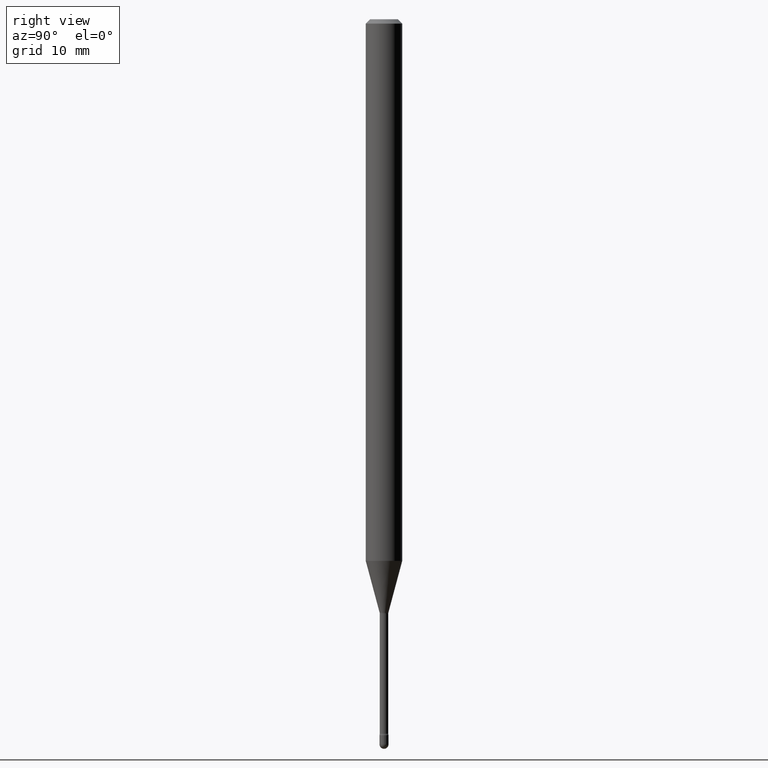
[diagram: clean part render]
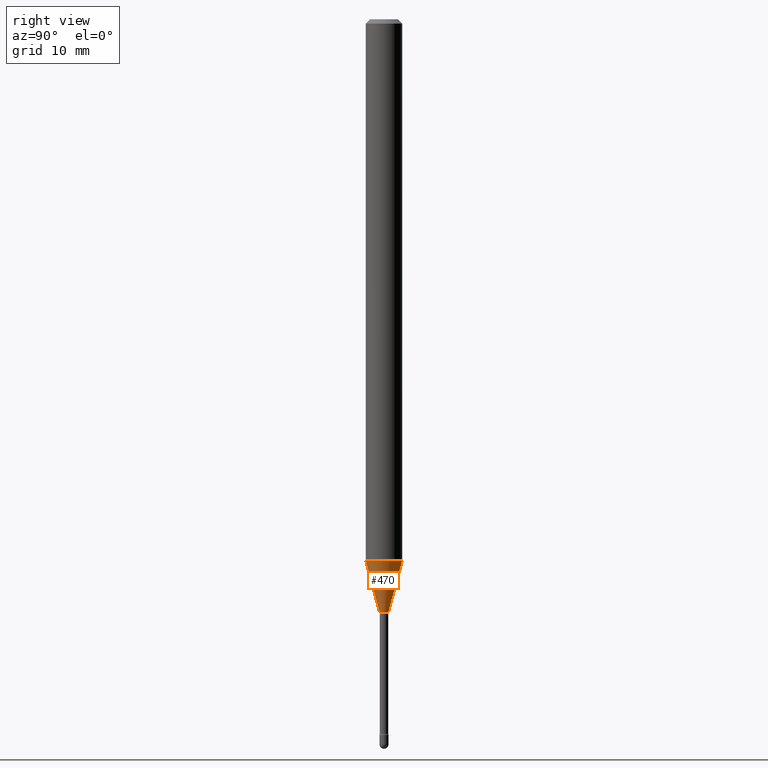
[diagram: same view with one face highlighted and labeled with its STEP entity id]
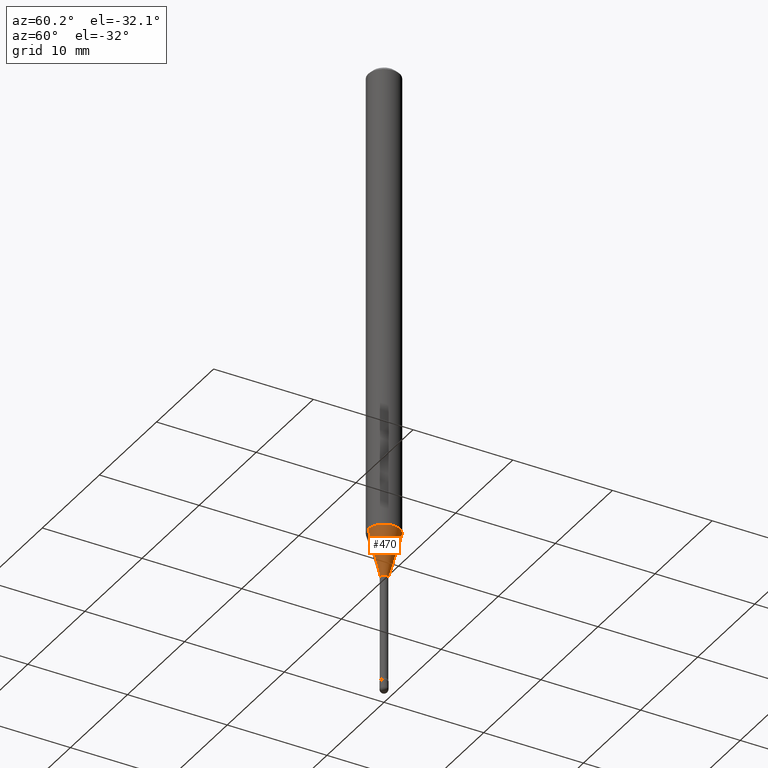
[diagram: same view with one face highlighted and labeled with its STEP entity id]
A machine part, right view. The second image highlights one B-rep face of the part: STEP entity #470.
A second angle (auxiliary view) of the same face is appended — the face is thin or edge-on in the first view.
In plain terms, the highlighted conical surface has half-angle 15 deg.
Its self-contained STEP definition (entity closure, byte-faithful):
#7 = CARTESIAN_POINT ( 'NONE',  ( -1.051711872097320102E-16, -0.01506111260567108076, -2.033092501787272965 ) ) ;
#15 = DIRECTION ( 'NONE',  ( -6.982962677686265922E-15, -1.000000000000000000, 4.370956789862821150E-15 ) ) ;
#22 = VECTOR ( 'NONE', #345, 39.37007874015748143 ) ;
#48 = AXIS2_PLACEMENT_3D ( 'NONE', #435, #189, #15 ) ;
#58 = CARTESIAN_POINT ( 'NONE',  ( 2.755524256971760080E-16, 0.01506111260565688378, -2.033092501787272965 ) ) ;
#72 = DIRECTION ( 'NONE',  ( -6.982962677686266711E-15, -1.000000000000000000, 0.000000000000000000 ) ) ;
#75 = VECTOR ( 'NONE', #516, 39.37007874015748854 ) ;
#83 = ORIENTED_EDGE ( 'NONE', *, *, #263, .T. ) ;
#95 = ORIENTED_EDGE ( 'NONE', *, *, #546, .F. ) ;
#145 = VERTEX_POINT ( 'NONE', #257 ) ;
#149 = CARTESIAN_POINT ( 'NONE',  ( 4.440892098501077785E-16, 0.06249999999999351213, -1.856048163777072935 ) ) ;
#152 = EDGE_CURVE ( 'NONE', #331, #145, #535, .T. ) ;
#153 = DIRECTION ( 'NONE',  ( -2.445470709946298928E-29, 3.491478612548805977E-15, 1.000000000000000000 ) ) ;
#178 = ORIENTED_EDGE ( 'NONE', *, *, #152, .F. ) ;
#189 = DIRECTION ( 'NONE',  ( -2.445470709946298928E-29, 3.491478612548805977E-15, 1.000000000000000000 ) ) ;
#212 = DIRECTION ( 'NONE',  ( -2.445470709946298928E-29, 3.491478612548805977E-15, 1.000000000000000000 ) ) ;
#217 = CONICAL_SURFACE ( 'NONE', #390, 0.01506111260566398227, 0.2617993877991499074 ) ;
#237 = AXIS2_PLACEMENT_3D ( 'NONE', #551, #153, #325 ) ;
#257 = CARTESIAN_POINT ( 'NONE',  ( -4.364351673553463592E-16, -0.06250000000000649480, -1.856048163777072491 ) ) ;
#263 = EDGE_CURVE ( 'NONE', #331, #388, #487, .T. ) ;
#289 = CIRCLE ( 'NONE', #48, 0.06250000000000000000 ) ;
#319 = CARTESIAN_POINT ( 'NONE',  ( -1.051711872097320102E-16, -0.01506111260567108076, -2.033092501787272965 ) ) ;
#325 = DIRECTION ( 'NONE',  ( -6.982962677686266711E-15, -1.000000000000000000, 0.000000000000000000 ) ) ;
#330 = FACE_OUTER_BOUND ( 'NONE', #543, .T. ) ;
#331 = VERTEX_POINT ( 'NONE', #319 ) ;
#334 = CARTESIAN_POINT ( 'NONE',  ( 1.070156415442438800E-16, 0.01506111260565688378, -2.033092501787272965 ) ) ;
#345 = DIRECTION ( 'NONE',  ( -1.807323732225327773E-15, -0.2588190451025178529, 0.9659258262890690894 ) ) ;
#377 = CARTESIAN_POINT ( 'NONE',  ( 4.971868163732220169E-29, -7.098498987323608591E-15, -2.033092501787272965 ) ) ;
#388 = VERTEX_POINT ( 'NONE', #58 ) ;
#390 = AXIS2_PLACEMENT_3D ( 'NONE', #377, #212, #72 ) ;
#403 = VERTEX_POINT ( 'NONE', #149 ) ;
#430 = LINE ( 'NONE', #334, #75 ) ;
#435 = CARTESIAN_POINT ( 'NONE',  ( 4.538911420766442433E-29, -6.480352467688133493E-15, -1.856048163777072713 ) ) ;
#466 = EDGE_CURVE ( 'NONE', #388, #403, #430, .T. ) ;
#470 = ADVANCED_FACE ( 'NONE', ( #330 ), #217, .T. ) ;
#487 = CIRCLE ( 'NONE', #237, 0.01506111260566398227 ) ;
#516 = DIRECTION ( 'NONE',  ( 1.839019923739597554E-15, 0.2588190451025245697, 0.9659258262890670910 ) ) ;
#535 = LINE ( 'NONE', #7, #22 ) ;
#543 = EDGE_LOOP ( 'NONE', ( #83, #556, #95, #178 ) ) ;
#546 = EDGE_CURVE ( 'NONE', #145, #403, #289, .T. ) ;
#551 = CARTESIAN_POINT ( 'NONE',  ( 4.971868163732220169E-29, -7.098498987323608591E-15, -2.033092501787272965 ) ) ;
#556 = ORIENTED_EDGE ( 'NONE', *, *, #466, .T. ) ;